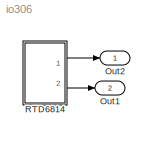
MODEL io306
KIND model
BLOCK [Outport] Out1
  BusOutputAsStruct = off
  IconDisplay = Port number
  Port = 2
BLOCK [Outport] Out2
  BusOutputAsStruct = off
  IconDisplay = Port number
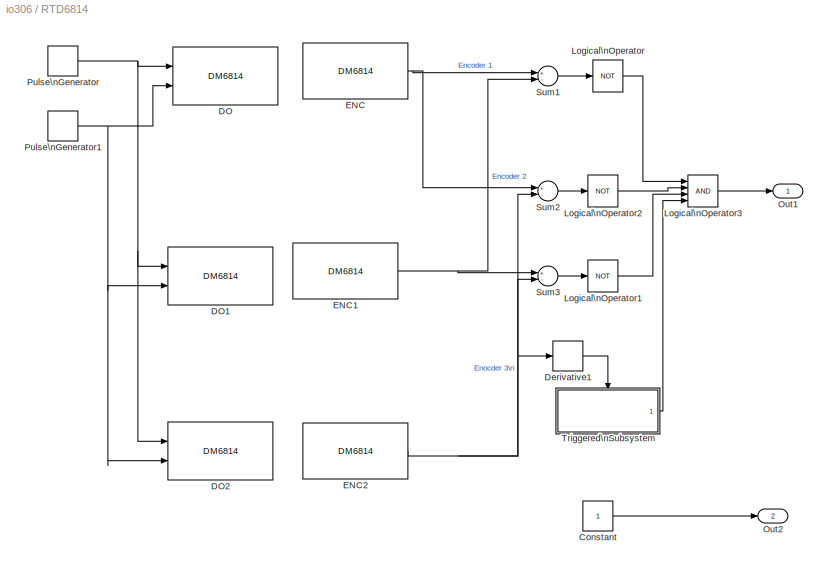
BLOCK [SubSystem] RTD6814
  MinAlgLoopOccurrences = off
  Ports = [0, 2]
  PropExecContextAcrossSSBoundary = on
  RTWSystemCode = Auto
  TreatAsAtomicUnit = off
BLOCK [Constant] RTD6814/Constant
BLOCK [Reference] RTD6814/DO  REF=xpcrealtimedeviceslib/Digital\nOutput/DM6814 
  Ports = [2]
  SourceBlock = xpcrealtimedeviceslib/Digital\nOutput/DM6814
  SourceType = dortddm6814
  baseHex = 0x280
  channel = [1 2]
  initValue = [0]
  port = A
  reset = [1]
  sampleTime = .001
BLOCK [Reference] RTD6814/DO1  REF=xpcrealtimedeviceslib/Digital\nOutput/DM6814 
  Ports = [2]
  SourceBlock = xpcrealtimedeviceslib/Digital\nOutput/DM6814
  SourceType = dortddm6814
  baseHex = 0x280
  channel = [1 2]
  initValue = [0]
  port = B
  reset = [1]
  sampleTime = .001
BLOCK [Reference] RTD6814/DO2  REF=xpcrealtimedeviceslib/Digital\nOutput/DM6814 
  Ports = [2]
  SourceBlock = xpcrealtimedeviceslib/Digital\nOutput/DM6814
  SourceType = dortddm6814
  baseHex = 0x280
  channel = [1 2]
  initValue = [0]
  port = C
  reset = [1]
  sampleTime = .001
BLOCK [Derivative] RTD6814/Derivative1
BLOCK [Reference] RTD6814/ENC  REF=xpcrealtimedeviceslib/Incremental\nEncoder/DM6814 
  Ports = [0, 1]
  SourceBlock = xpcrealtimedeviceslib/Incremental\nEncoder/DM6814
  SourceType = encrtddm6814
  baseHex = 0x280
  channel = 1
  initValue = 0
  reset = off
  sampleTime = 0.001
BLOCK [Reference] RTD6814/ENC1  REF=xpcrealtimedeviceslib/Incremental\nEncoder/DM6814 
  Ports = [0, 1]
  SourceBlock = xpcrealtimedeviceslib/Incremental\nEncoder/DM6814
  SourceType = encrtddm6814
  baseHex = 0x280
  channel = 2
  initValue = 0
  reset = off
  sampleTime = 0.001
BLOCK [Reference] RTD6814/ENC2  REF=xpcrealtimedeviceslib/Incremental\nEncoder/DM6814 
  Ports = [0, 1]
  SourceBlock = xpcrealtimedeviceslib/Incremental\nEncoder/DM6814
  SourceType = encrtddm6814
  baseHex = 0x280
  channel = 3
  initValue = 0
  reset = off
  sampleTime = 0.001
BLOCK [Logic] RTD6814/Logical\nOperator
  AllPortsSameDT = off
  Operator = NOT
  Ports = [1, 1]
BLOCK [Logic] RTD6814/Logical\nOperator1
  AllPortsSameDT = off
  Operator = NOT
  Ports = [1, 1]
BLOCK [Logic] RTD6814/Logical\nOperator2
  AllPortsSameDT = off
  Operator = NOT
  Ports = [1, 1]
BLOCK [Logic] RTD6814/Logical\nOperator3
  AllPortsSameDT = off
  Inputs = 4
  Ports = [4, 1]
BLOCK [Outport] RTD6814/Out1
  BusOutputAsStruct = off
  IconDisplay = Port number
BLOCK [Outport] RTD6814/Out2
  BusOutputAsStruct = off
  IconDisplay = Port number
  Port = 2
BLOCK [DiscretePulseGenerator] RTD6814/Pulse\nGenerator
  Period = 6000
  PhaseDelay = 500
  Ports = [0, 1]
  PulseWidth = 3000
  SampleTime = 0.001
BLOCK [DiscretePulseGenerator] RTD6814/Pulse\nGenerator1
  Period = 6000
  PhaseDelay = 2500
  Ports = [0, 1]
  PulseWidth = 3000
  SampleTime = 0.001
  VectorParams1D = off
BLOCK [Sum] RTD6814/Sum1
  InputSameDT = off
  Inputs = +-
  OutDataTypeMode = Inherit via internal rule
  Ports = [2, 1]
BLOCK [Sum] RTD6814/Sum2
  InputSameDT = off
  Inputs = +-
  OutDataTypeMode = Inherit via internal rule
  Ports = [2, 1]
BLOCK [Sum] RTD6814/Sum3
  InputSameDT = off
  Inputs = +-
  OutDataTypeMode = Inherit via internal rule
  Ports = [2, 1]
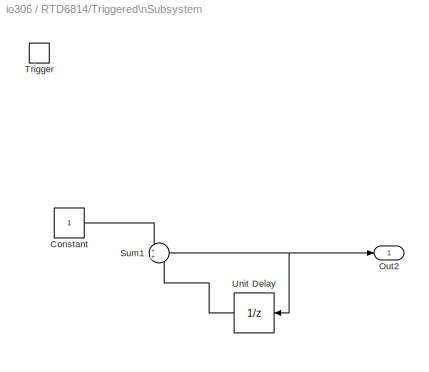
BLOCK [SubSystem] RTD6814/Triggered\nSubsystem
  MinAlgLoopOccurrences = off
  Ports = [0, 1, 0, 1]
  PropExecContextAcrossSSBoundary = on
  RTWSystemCode = Auto
  TreatAsAtomicUnit = on
BLOCK [Constant] RTD6814/Triggered\nSubsystem/Constant
BLOCK [Outport] RTD6814/Triggered\nSubsystem/Out2
  BusOutputAsStruct = off
  IconDisplay = Port number
BLOCK [Sum] RTD6814/Triggered\nSubsystem/Sum1
  IconShape = round
  InputSameDT = off
  OutDataTypeMode = Inherit via internal rule
  Ports = [2, 1]
BLOCK [TriggerPort] RTD6814/Triggered\nSubsystem/Trigger
  Ports = []
BLOCK [UnitDelay] RTD6814/Triggered\nSubsystem/Unit Delay
  SampleTime = -1
  X0 = 1
LINE RTD6814/Constant:1 -> RTD6814/Out2:1
LINE RTD6814/Derivative1:1 -> RTD6814/Triggered\nSubsystem:trigger
NET RTD6814/ENC1:1 -> RTD6814/Sum1:2, RTD6814/Sum3:1
NET RTD6814/ENC2:1 -> RTD6814/Derivative1:1, RTD6814/Sum2:2, RTD6814/Sum3:2
NET RTD6814/ENC:1 -> RTD6814/Sum1:1, RTD6814/Sum2:1
LINE RTD6814/Logical\nOperator1:1 -> RTD6814/Logical\nOperator3:3
LINE RTD6814/Logical\nOperator2:1 -> RTD6814/Logical\nOperator3:2
LINE RTD6814/Logical\nOperator3:1 -> RTD6814/Out1:1
LINE RTD6814/Logical\nOperator:1 -> RTD6814/Logical\nOperator3:1
NET RTD6814/Pulse\nGenerator1:1 -> RTD6814/DO1:2, RTD6814/DO2:2, RTD6814/DO:2
NET RTD6814/Pulse\nGenerator:1 -> RTD6814/DO1:1, RTD6814/DO2:1, RTD6814/DO:1
LINE RTD6814/Sum1:1 -> RTD6814/Logical\nOperator:1
LINE RTD6814/Sum2:1 -> RTD6814/Logical\nOperator2:1
LINE RTD6814/Sum3:1 -> RTD6814/Logical\nOperator1:1
LINE RTD6814/Triggered\nSubsystem/Constant:1 -> RTD6814/Triggered\nSubsystem/Sum1:1
NET RTD6814/Triggered\nSubsystem/Sum1:1 -> RTD6814/Triggered\nSubsystem/Out2:1, RTD6814/Triggered\nSubsystem/Unit Delay:1
LINE RTD6814/Triggered\nSubsystem/Unit Delay:1 -> RTD6814/Triggered\nSubsystem/Sum1:2
LINE RTD6814/Triggered\nSubsystem:1 -> RTD6814/Logical\nOperator3:4
LINE RTD6814:1 -> Out2:1
LINE RTD6814:2 -> Out1:1
note: NET lines group one-source signal fan-out (src -> all destinations, sorted); 1:1 wires keep LINE
